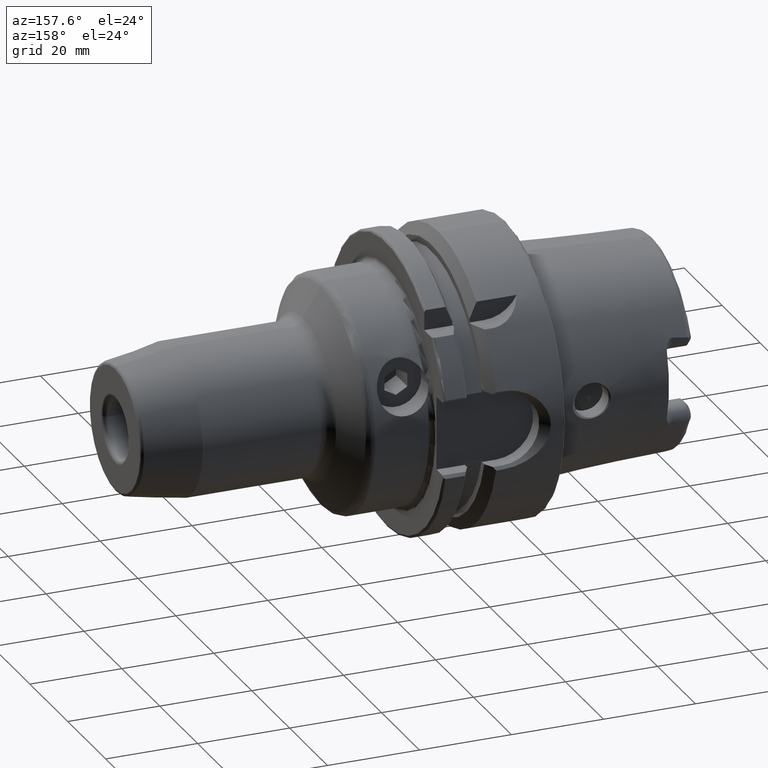
[diagram: clean part render]
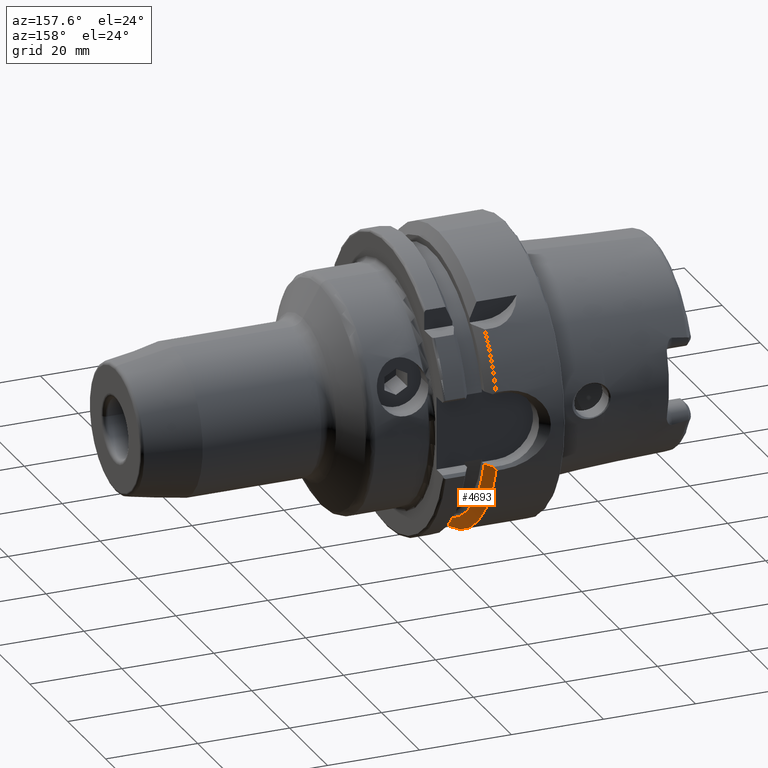
[diagram: same view with one face highlighted and labeled with its STEP entity id]
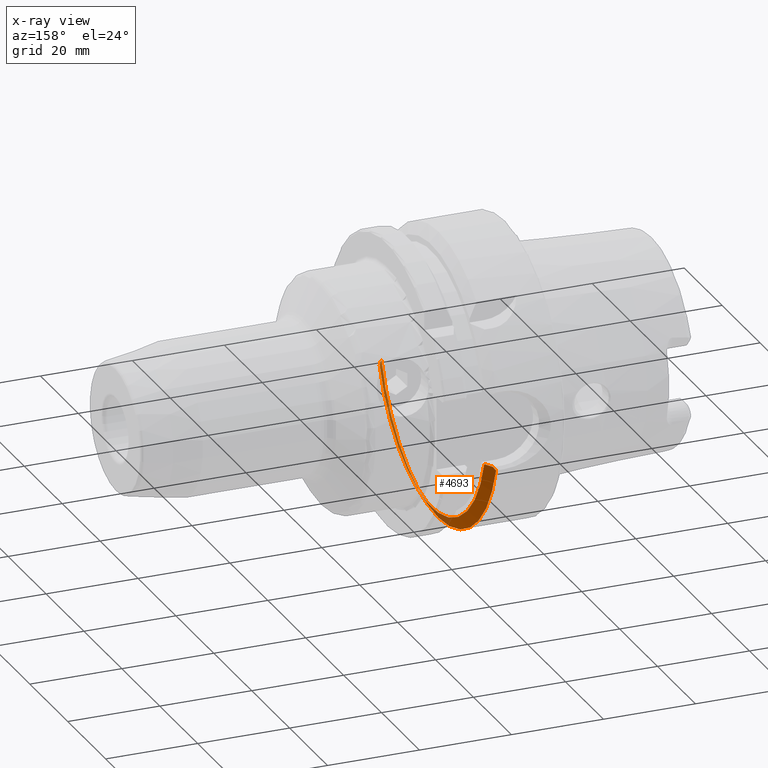
[diagram: x-ray of the same camera — body ghosted, the highlighted face saturated]
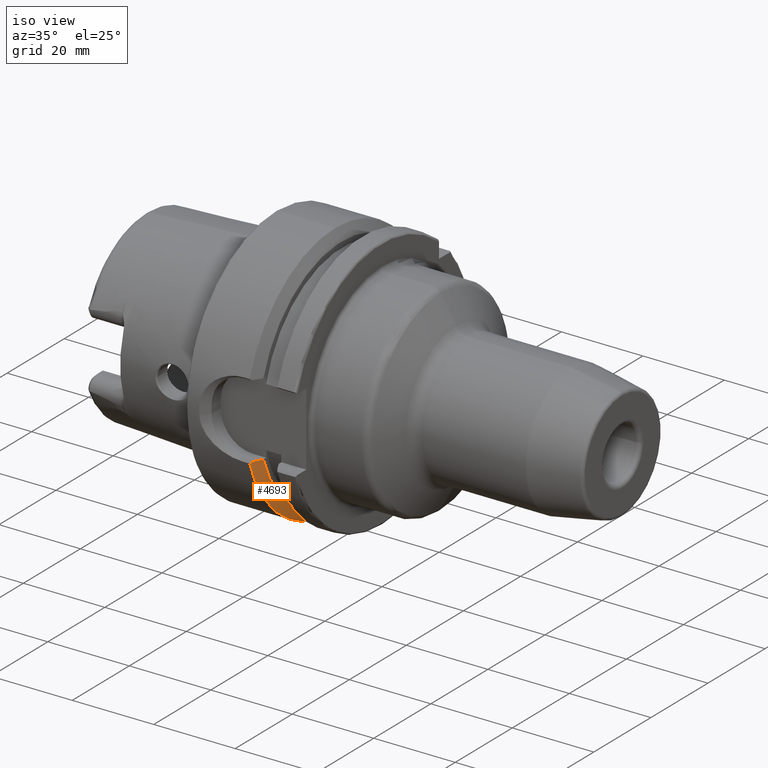
[diagram: same view with one face highlighted and labeled with its STEP entity id]
A machine part, auxiliary view. The second image highlights one B-rep face of the part: STEP entity #4693.
The next image is the same camera in x-ray: the body ghosted, the highlighted face saturated — about 27% of this face is hidden behind the body in this view.
A second angle (iso view) of the same face is appended — the face is thin or edge-on in the first view.
In plain terms, the highlighted conical surface has half-angle 60 deg.
Its self-contained STEP definition (entity closure, byte-faithful):
#1370=CARTESIAN_POINT('',(1.462250090457E1,0.E0,0.E0));
#1371=DIRECTION('',(1.E0,0.E0,0.E0));
#1372=DIRECTION('',(0.E0,-9.547030571660E-1,-2.975602000232E-1));
#1373=AXIS2_PLACEMENT_3D('',#1370,#1371,#1372);
#1498=CARTESIAN_POINT('',(1.462250090457E1,3.030257052423E1,-8.602570524226E0));
#1499=CARTESIAN_POINT('',(1.467078948999E1,3.023485181707E1,-8.534851817065E0));
#1500=CARTESIAN_POINT('',(1.476688260126E1,3.009992541680E1,-8.399925416799E0));
#1501=CARTESIAN_POINT('',(1.490956824516E1,2.989907088203E1,-8.199070882028E0));
#1502=CARTESIAN_POINT('',(1.500372551638E1,2.976618689262E1,-8.066186892620E0));
#1503=CARTESIAN_POINT('',(1.505056223932E1,2.97E1,-8.E0));
#1505=CARTESIAN_POINT('',(1.489172432548E1,-2.97E1,-9.E0));
#1506=CARTESIAN_POINT('',(1.484725659362E1,-2.976176295487E1,
-9.061762954873E0));
#1507=CARTESIAN_POINT('',(1.475791820907E1,-2.988571693019E1,
-9.185716930191E0));
#1508=CARTESIAN_POINT('',(1.466777422758E1,-3.001052712454E1,
-9.310527124543E0));
#1509=CARTESIAN_POINT('',(1.462250090457E1,-3.007314630073E1,
-9.373146300730E0));
#1511=CARTESIAN_POINT('',(1.489172432548E1,-2.97E1,-9.E0));
#1512=CARTESIAN_POINT('',(1.503259110226E1,-2.944505518706E1,-9.E0));
#1513=CARTESIAN_POINT('',(1.531177223422E1,-2.893923282224E1,-9.E0));
#1514=CARTESIAN_POINT('',(1.572283541904E1,-2.819275590813E1,-9.E0));
#1515=CARTESIAN_POINT('',(1.599179761986E1,-2.770314203488E1,-9.E0));
#1516=CARTESIAN_POINT('',(1.6125E1,-2.746035349595E1,-9.E0));
#1518=CARTESIAN_POINT('',(1.6125E1,0.E0,0.E0));
#1519=DIRECTION('',(1.E0,0.E0,0.E0));
#1520=DIRECTION('',(0.E0,-9.502643112990E-1,-3.114445996827E-1));
#1521=AXIS2_PLACEMENT_3D('',#1518,#1519,#1520);
#1523=CARTESIAN_POINT('',(1.6125E1,2.776816547996E1,-8.E0));
#1524=CARTESIAN_POINT('',(1.600834584368E1,2.797843452792E1,-8.E0));
#1525=CARTESIAN_POINT('',(1.577321590256E1,2.840189003060E1,-8.E0));
#1526=CARTESIAN_POINT('',(1.541507867144E1,2.904580805274E1,-8.E0));
#1527=CARTESIAN_POINT('',(1.517267317071E1,2.948095924087E1,-8.E0));
#1528=CARTESIAN_POINT('',(1.505056223932E1,2.97E1,-8.E0));
#1555=CARTESIAN_POINT('',(1.462250090457E1,0.E0,0.E0));
#1556=DIRECTION('',(1.E0,0.E0,0.E0));
#1557=DIRECTION('',(0.E0,0.E0,-1.E0));
#1558=AXIS2_PLACEMENT_3D('',#1555,#1556,#1557);
#2596=CARTESIAN_POINT('',(1.6125E1,2.776816547996E1,-8.E0));
#2597=VERTEX_POINT('',#2596);
#2628=CARTESIAN_POINT('',(1.6125E1,-2.746035349595E1,-9.E0));
#2629=VERTEX_POINT('',#2628);
#2825=CARTESIAN_POINT('',(1.462250090457E1,0.E0,-3.15E1));
#2826=VERTEX_POINT('',#2825);
#2850=CARTESIAN_POINT('',(1.462250090457E1,-3.007314630073E1,
-9.373146300730E0));
#2852=VERTEX_POINT('',#2850);
#2858=VERTEX_POINT('',#1505);
#2877=CARTESIAN_POINT('',(1.462250090457E1,3.030257052423E1,-8.602570524226E0));
#2878=VERTEX_POINT('',#2877);
#2880=VERTEX_POINT('',#1503);
#4674=CARTESIAN_POINT('',(1.537375045228E1,0.E0,0.E0));
#4675=DIRECTION('',(-1.E0,0.E0,0.E0));
#4676=DIRECTION('',(0.E0,0.E0,-1.E0));
#4677=AXIS2_PLACEMENT_3D('',#4674,#4675,#4676);
#4678=CONICAL_SURFACE('',#4677,3.019879765E1,5.999999931725E1);
#4680=ORIENTED_EDGE('',*,*,#4679,.F.);
#4682=ORIENTED_EDGE('',*,*,#4681,.F.);
#4683=ORIENTED_EDGE('',*,*,#4510,.F.);
#4684=ORIENTED_EDGE('',*,*,#4548,.F.);
#4686=ORIENTED_EDGE('',*,*,#4685,.T.);
#4688=ORIENTED_EDGE('',*,*,#4687,.T.);
#4690=ORIENTED_EDGE('',*,*,#4689,.T.);
#4691=EDGE_LOOP('',(#4680,#4682,#4683,#4684,#4686,#4688,#4690));
#4692=FACE_OUTER_BOUND('',#4691,.F.);
#4693=ADVANCED_FACE('',(#4692),#4678,.T.);
#1374=CIRCLE('',#1373,3.15E1);
#1504=B_SPLINE_CURVE_WITH_KNOTS('',3,(#1498,#1499,#1500,#1501,#1502,#1503),
.UNSPECIFIED.,.F.,.F.,(4,1,1,4),(0.E0,3.333333333333E-1,6.666666666667E-1,1.E0),
.UNSPECIFIED.);
#1510=B_SPLINE_CURVE_WITH_KNOTS('',3,(#1505,#1506,#1507,#1508,#1509),
.UNSPECIFIED.,.F.,.F.,(4,1,4),(0.E0,5.E-1,1.E0),.UNSPECIFIED.);
#1517=B_SPLINE_CURVE_WITH_KNOTS('',3,(#1511,#1512,#1513,#1514,#1515,#1516),
.UNSPECIFIED.,.F.,.F.,(4,1,1,4),(0.E0,3.333333333333E-1,6.666666666667E-1,1.E0),
.UNSPECIFIED.);
#1522=CIRCLE('',#1521,2.88975953E1);
#1529=B_SPLINE_CURVE_WITH_KNOTS('',3,(#1523,#1524,#1525,#1526,#1527,#1528),
.UNSPECIFIED.,.F.,.F.,(4,1,1,4),(0.E0,3.333333333333E-1,6.666666666667E-1,1.E0),
.UNSPECIFIED.);
#1559=CIRCLE('',#1558,3.15E1);
#4510=EDGE_CURVE('',#2852,#2826,#1374,.T.);
#4548=EDGE_CURVE('',#2858,#2852,#1510,.T.);
#4679=EDGE_CURVE('',#2878,#2880,#1504,.T.);
#4681=EDGE_CURVE('',#2826,#2878,#1559,.T.);
#4685=EDGE_CURVE('',#2858,#2629,#1517,.T.);
#4687=EDGE_CURVE('',#2629,#2597,#1522,.T.);
#4689=EDGE_CURVE('',#2597,#2880,#1529,.T.);